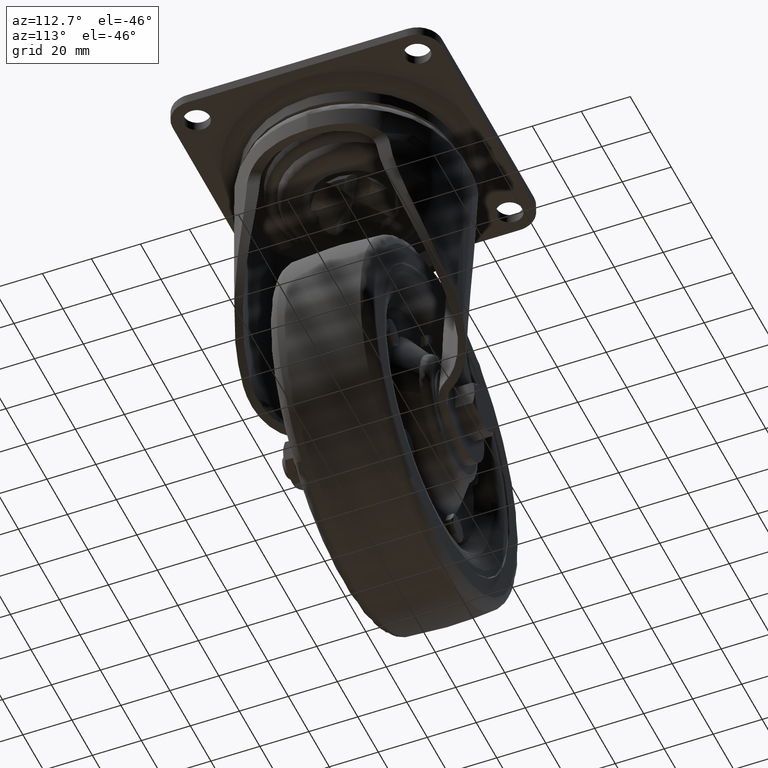
[diagram: clean part render]
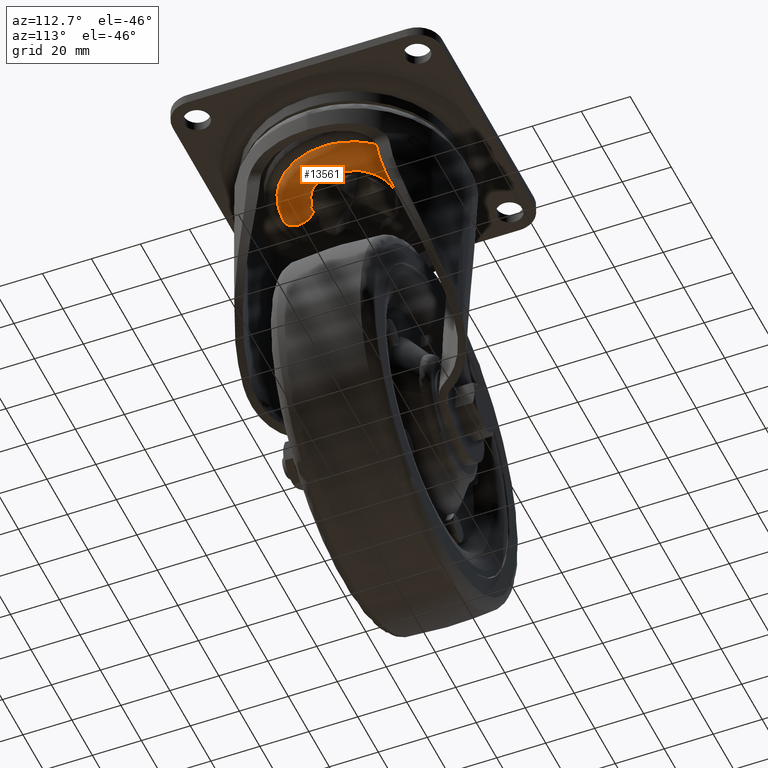
[diagram: same view with one face highlighted and labeled with its STEP entity id]
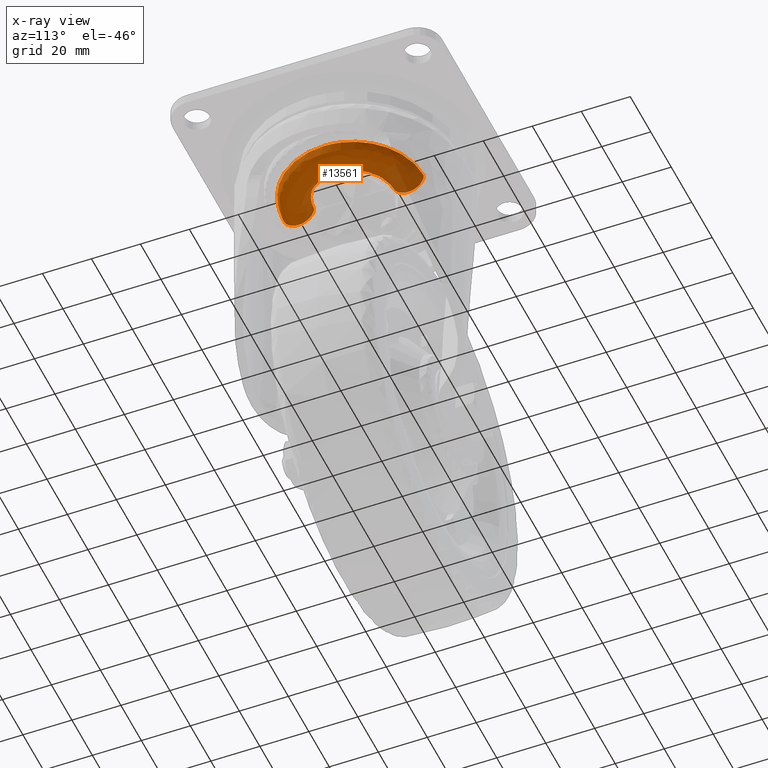
[diagram: x-ray of the same camera — body ghosted, the highlighted face saturated]
A machine part, auxiliary view. The second image highlights one B-rep face of the part: STEP entity #13561.
The next image is the same camera in x-ray: the body ghosted, the highlighted face saturated — about 16% of this face is hidden behind the body in this view.
In plain terms, the highlighted face is a freeform B-spline surface patch.
Its self-contained STEP definition (entity closure, byte-faithful):
#13110=CARTESIAN_POINT('',(0.0,16.0,-20.525000000543741));
#13111=VERTEX_POINT('',#13110);
#13125=CARTESIAN_POINT('',(16.0,0.0,-20.524999999999999));
#13126=VERTEX_POINT('',#13125);
#13127=CARTESIAN_POINT('',(0.0,16.0,-20.525000000543741));
#13128=CARTESIAN_POINT('',(15.999999999999998,15.999999999999998,-20.525000000271870));
#13129=CARTESIAN_POINT('',(16.0,0.0,-20.524999999999999));
#13137=(BOUNDED_CURVE()B_SPLINE_CURVE(2,(#13127,#13128,#13129),.UNSPECIFIED.,.F.,.U.)B_SPLINE_CURVE_WITH_KNOTS((3,3),(0.250000000000000,0.500000000000000),.UNSPECIFIED.)CURVE()GEOMETRIC_REPRESENTATION_ITEM()RATIONAL_B_SPLINE_CURVE((1.0,0.707106781186548,1.0))REPRESENTATION_ITEM(''));
#13138=EDGE_CURVE('',#13111,#13126,#13137,.T.);
#13140=CARTESIAN_POINT('',(11.605990840912520,-11.013672257728251,-20.525000000261858));
#13141=VERTEX_POINT('',#13140);
#13142=CARTESIAN_POINT('',(16.0,0.0,-20.524999999999999));
#13143=CARTESIAN_POINT('',(16.0,-6.383351973822055,-20.525000000108470));
#13144=CARTESIAN_POINT('',(11.605990840912554,-11.013672257728295,-20.525000000261809));
#13152=(BOUNDED_CURVE()B_SPLINE_CURVE(2,(#13142,#13143,#13144),.UNSPECIFIED.,.F.,.U.)B_SPLINE_CURVE_WITH_KNOTS((3,3),(0.500000000000000,0.621049514262258),.UNSPECIFIED.)CURVE()GEOMETRIC_REPRESENTATION_ITEM()RATIONAL_B_SPLINE_CURVE((1.0,0.858181672527689,0.853699662287451))REPRESENTATION_ITEM(''));
#13153=EDGE_CURVE('',#13126,#13141,#13152,.T.);
#13207=CARTESIAN_POINT('',(8.733946E-016,-16.0,-20.525000000543741));
#13208=VERTEX_POINT('',#13207);
#13209=CARTESIAN_POINT('',(11.605990840912554,-11.013672257728295,-20.525000000261809));
#13210=CARTESIAN_POINT('',(6.874143273929573,-16.0,-20.525000000426935));
#13211=CARTESIAN_POINT('',(8.733946E-016,-16.0,-20.525000000543741));
#13219=(BOUNDED_CURVE()B_SPLINE_CURVE(2,(#13209,#13210,#13211),.UNSPECIFIED.,.F.,.U.)B_SPLINE_CURVE_WITH_KNOTS((3,3),(0.621049514262258,0.750000000000000),.UNSPECIFIED.)CURVE()GEOMETRIC_REPRESENTATION_ITEM()RATIONAL_B_SPLINE_CURVE((0.853699662287451,0.848925108658858,1.0))REPRESENTATION_ITEM(''));
#13220=EDGE_CURVE('',#13141,#13208,#13219,.T.);
#13404=CARTESIAN_POINT('',(3.014593E-014,-28.749999999999989,-20.525000000479810));
#13405=VERTEX_POINT('',#13404);
#13406=CARTESIAN_POINT('',(3.014593E-014,-28.749999999999989,-20.525000000479810));
#13407=CARTESIAN_POINT('',(-1.344581E-014,-28.750082172684710,-20.994402385624291));
#13408=CARTESIAN_POINT('',(1.072928E-014,-28.660295752064780,-21.802763336197501));
#13409=CARTESIAN_POINT('',(8.799959E-016,-28.303890941417610,-22.952157454257211));
#13410=CARTESIAN_POINT('',(4.344726E-015,-27.696254768093990,-24.141586302158871));
#13411=CARTESIAN_POINT('',(2.861740E-015,-26.739754506233719,-25.264334613196301));
#13412=CARTESIAN_POINT('',(3.355357E-015,-25.602663723854821,-26.064882447649008));
#13413=CARTESIAN_POINT('',(3.361670E-015,-24.413976986034061,-26.609383296407081));
#13414=CARTESIAN_POINT('',(3.477330E-015,-23.263707121248601,-26.882590893327642));
#13415=CARTESIAN_POINT('',(3.560036E-015,-22.034741792682169,-26.920134347665240));
#13416=CARTESIAN_POINT('',(3.048243E-015,-20.737907879838410,-26.744318505072009));
#13417=CARTESIAN_POINT('',(2.733621E-015,-19.383221705815512,-26.231222191312209));
#13418=CARTESIAN_POINT('',(2.370129E-015,-18.203471694870451,-25.400171501827121));
#13419=CARTESIAN_POINT('',(2.088737E-015,-17.337174656169228,-24.490210478616401));
#13420=CARTESIAN_POINT('',(2.159818E-015,-16.579560917845779,-23.326144486754309));
#13421=CARTESIAN_POINT('',(1.182241E-015,-16.100037796188079,-21.959263100965028));
#13422=CARTESIAN_POINT('',(2.332893E-015,-15.999978259980280,-20.942206380705919));
#13423=CARTESIAN_POINT('',(8.733946E-016,-16.0,-20.525000000543741));
#13424=B_SPLINE_CURVE_WITH_KNOTS('',3,(#13406,#13407,#13408,#13409,#13410,#13411,#13412,#13413,#13414,#13415,#13416,#13417,#13418,#13419,#13420,#13421,#13422,#13423),.UNSPECIFIED.,.F.,.U.,(4,1,1,1,1,1,1,1,1,1,1,1,1,1,1,4),(0.000000708556030,1.408197387669055,2.425213565202306,3.598723030366802,5.398131815701264,6.806356541387057,7.745197802343483,9.309856874538921,10.326722238627459,11.422074060575600,13.221388828936670,14.629635181378340,15.724934916081629,16.976711367033321,18.776135455021009,20.027778830854881),.UNSPECIFIED.);
#13425=EDGE_CURVE('',#13405,#13208,#13424,.T.);
#13442=CARTESIAN_POINT('',(-2.486900E-014,28.749999999999989,-20.525000000479810));
#13443=VERTEX_POINT('',#13442);
#13457=CARTESIAN_POINT('',(-2.486900E-014,28.749999999999989,-20.525000000479810));
#13458=CARTESIAN_POINT('',(1.324521E-014,28.750035307598850,-20.916136535703760));
#13459=CARTESIAN_POINT('',(-1.058403E-014,28.675387412468680,-21.724525602919719));
#13460=CARTESIAN_POINT('',(3.530806E-015,28.339703680665838,-22.882196186751511));
#13461=CARTESIAN_POINT('',(-1.206335E-015,27.743819935753770,-24.048227601694290));
#13462=CARTESIAN_POINT('',(5.609523E-016,26.818130378365140,-25.190590057895470));
#13463=CARTESIAN_POINT('',(-2.030828E-016,25.655576336751409,-26.052801748812470));
#13464=CARTESIAN_POINT('',(3.698121E-017,24.482935632956298,-26.572361103137940));
#13465=CARTESIAN_POINT('',(8.920217E-022,23.342821076821590,-26.865449787961381));
#13466=CARTESIAN_POINT('',(-2.690851E-022,22.112061911730532,-26.941071510449390));
#13467=CARTESIAN_POINT('',(1.080107E-022,20.608635477578400,-26.718270515944621));
#13468=CARTESIAN_POINT('',(-3.182957E-023,19.269155500978140,-26.163459631093069));
#13469=CARTESIAN_POINT('',(4.831673E-024,18.191614064229348,-25.374176606646952));
#13470=CARTESIAN_POINT('',(0.0,17.369781829353201,-24.532028200028780));
#13471=CARTESIAN_POINT('',(0.0,16.640851853686829,-23.441285143666342));
#13472=CARTESIAN_POINT('',(0.0,16.119112720019292,-22.037446388688849));
#13473=CARTESIAN_POINT('',(0.0,15.999907703511640,-21.020463020449871));
#13474=CARTESIAN_POINT('',(0.0,16.0,-20.525000000543741));
#13475=B_SPLINE_CURVE_WITH_KNOTS('',3,(#13457,#13458,#13459,#13460,#13461,#13462,#13463,#13464,#13465,#13466,#13467,#13468,#13469,#13470,#13471,#13472,#13473,#13474),.UNSPECIFIED.,.F.,.U.,(4,1,1,1,1,1,1,1,1,1,1,1,1,1,1,4),(0.000000708562027,1.173412848648077,2.425213565207741,3.598723030371840,5.085201597240008,6.806356541391573,7.901625474266631,8.918718929449813,10.326722238629120,11.578476237009131,13.456139726608480,14.629635181377459,15.568465676495951,16.976711367033069,18.541398619356720,20.027778830854881),.UNSPECIFIED.);
#13476=EDGE_CURVE('',#13443,#13111,#13475,.T.);
#13483=CARTESIAN_POINT('',(-0.801956041474541,28.685608825813549,-19.621207298345453));
#13484=CARTESIAN_POINT('',(-0.403313216341473,28.685608825813546,-19.621207298345460));
#13485=CARTESIAN_POINT('',(28.685608825813542,28.685608825813542,-19.621207298345453));
#13486=CARTESIAN_POINT('',(28.685608825813549,1.756429E-015,-19.621207298345457));
#13487=CARTESIAN_POINT('',(28.685608825813556,-28.685608825813542,-19.621207298345453));
#13488=CARTESIAN_POINT('',(-0.403313216341460,-28.685608825813549,-19.621207298345464));
#13489=CARTESIAN_POINT('',(-0.801956041474520,-28.685608825813546,-19.621207298345457));
#13490=CARTESIAN_POINT('',(-0.831285312390123,29.734703725184531,-26.946368830372325));
#13491=CARTESIAN_POINT('',(-0.418063254964742,29.734703725184534,-26.946368830372339));
#13492=CARTESIAN_POINT('',(29.734703725184524,29.734703725184524,-26.946368830372336));
#13493=CARTESIAN_POINT('',(29.734703725184531,1.820665E-015,-26.946368830372332));
#13494=CARTESIAN_POINT('',(29.734703725184524,-29.734703725184524,-26.946368830372336));
#13495=CARTESIAN_POINT('',(-0.418063254964729,-29.734703725184534,-26.946368830372322));
#13496=CARTESIAN_POINT('',(-0.831285312390101,-29.734703725184524,-26.946368830372336));
#13497=CARTESIAN_POINT('',(-0.624412197531093,22.334944957219541,-26.899874162957857));
#13498=CARTESIAN_POINT('',(-0.314024308921061,22.334944957219566,-26.899874162957879));
#13499=CARTESIAN_POINT('',(22.334944957219552,22.334944957219552,-26.899874162957875));
#13500=CARTESIAN_POINT('',(22.334944957219559,1.367576E-015,-26.899874162957872));
#13501=CARTESIAN_POINT('',(22.334944957219552,-22.334944957219552,-26.899874162957875));
#13502=CARTESIAN_POINT('',(-0.314024308921051,-22.334944957219555,-26.899874162957868));
#13503=CARTESIAN_POINT('',(-0.624412197531077,-22.334944957219559,-26.899874162957868));
#13504=CARTESIAN_POINT('',(-0.420003722948155,15.023345269303801,-26.853933422669275));
#13505=CARTESIAN_POINT('',(-0.211224859739386,15.023345269303801,-26.853933422669272));
#13506=CARTESIAN_POINT('',(15.023345269303800,15.023345269303801,-26.853933422669272));
#13507=CARTESIAN_POINT('',(15.023345269303801,9.198842E-016,-26.853933422669279));
#13508=CARTESIAN_POINT('',(15.023345269303801,-15.023345269303800,-26.853933422669272));
#13509=CARTESIAN_POINT('',(-0.211224859739380,-15.023345269303801,-26.853933422669275));
#13510=CARTESIAN_POINT('',(-0.420003722948144,-15.023345269303801,-26.853933422669282));
#13511=CARTESIAN_POINT('',(-0.449125771115522,16.065027903678086,-19.616772526489687));
#13512=CARTESIAN_POINT('',(-0.225870683581845,16.065027903678093,-19.616772526489683));
#13513=CARTESIAN_POINT('',(16.065027903678086,16.065027903678086,-19.616772526489680));
#13514=CARTESIAN_POINT('',(16.065027903678089,9.836668E-016,-19.616772526489676));
#13515=CARTESIAN_POINT('',(16.065027903678086,-16.065027903678086,-19.616772526489680));
#13516=CARTESIAN_POINT('',(-0.225870683581838,-16.065027903678086,-19.616772526489683));
#13517=CARTESIAN_POINT('',(-0.449125771115510,-16.065027903678089,-19.616772526489683));
#13525=(BOUNDED_SURFACE()B_SPLINE_SURFACE(2,2,((#13483,#13490,#13497,#13504,#13511),(#13484,#13491,#13498,#13505,#13512),(#13485,#13492,#13499,#13506,#13513),(#13486,#13493,#13500,#13507,#13514),(#13487,#13494,#13501,#13508,#13515),(#13488,#13495,#13502,#13509,#13516),(#13489,#13496,#13503,#13510,#13517)),.UNSPECIFIED.,.F.,.F.,.U.)B_SPLINE_SURFACE_WITH_KNOTS((3,1,2,1,3),(3,2,3),(0.0,0.950557457646528,48.478430339971823,96.006303222297120,96.956860679943631),(0.0,11.691476881419190,23.292307663053951),.UNSPECIFIED.)GEOMETRIC_REPRESENTATION_ITEM()RATIONAL_B_SPLINE_SURFACE(((0.997364038925622,0.655637655299653,1.011715728752539,0.658398391937516,0.992107054316682),(0.991589271263368,0.651841493635293,1.005857864376269,0.654586245525322,0.986362724752790),(0.697076120488398,0.458237248752934,0.707106781186548,0.460166778503460,0.693401916994340),(0.985814503601113,0.648045331970933,1.0,0.650774099113129,0.980618395188899),(0.697076120488398,0.458237248752934,0.707106781186548,0.460166778503460,0.693401916994340),(0.991589271263368,0.651841493635293,1.005857864376269,0.654586245525322,0.986362724752790),(0.997364038925622,0.655637655299653,1.011715728752538,0.658398391937516,0.992107054316681)))REPRESENTATION_ITEM('')SURFACE());
#13526=ORIENTED_EDGE('',*,*,#13220,.F.);
#13527=ORIENTED_EDGE('',*,*,#13153,.F.);
#13528=ORIENTED_EDGE('',*,*,#13138,.F.);
#13529=ORIENTED_EDGE('',*,*,#13476,.F.);
#13530=CARTESIAN_POINT('',(28.750000000000000,0.0,-20.524999999999999));
#13531=VERTEX_POINT('',#13530);
#13532=CARTESIAN_POINT('',(-2.486900E-014,28.749999999999989,-20.525000000479810));
#13533=CARTESIAN_POINT('',(28.750000000000004,28.750000000000018,-20.525000000239903));
#13534=CARTESIAN_POINT('',(28.750000000000000,0.0,-20.524999999999999));
#13542=(BOUNDED_CURVE()B_SPLINE_CURVE(2,(#13532,#13533,#13534),.UNSPECIFIED.,.F.,.U.)B_SPLINE_CURVE_WITH_KNOTS((3,3),(0.250000000000000,0.500000000000000),.UNSPECIFIED.)CURVE()GEOMETRIC_REPRESENTATION_ITEM()RATIONAL_B_SPLINE_CURVE((1.0,0.707106781186547,1.0))REPRESENTATION_ITEM(''));
#13543=EDGE_CURVE('',#13443,#13531,#13542,.T.);
#13544=ORIENTED_EDGE('',*,*,#13543,.T.);
#13545=CARTESIAN_POINT('',(28.750000000000000,0.0,-20.524999999999999));
#13546=CARTESIAN_POINT('',(28.749999999999986,-28.749999999999961,-20.525000000239903));
#13547=CARTESIAN_POINT('',(3.014593E-014,-28.749999999999993,-20.525000000479810));
#13555=(BOUNDED_CURVE()B_SPLINE_CURVE(2,(#13545,#13546,#13547),.UNSPECIFIED.,.F.,.U.)B_SPLINE_CURVE_WITH_KNOTS((3,3),(0.500000000000000,0.750000000000000),.UNSPECIFIED.)CURVE()GEOMETRIC_REPRESENTATION_ITEM()RATIONAL_B_SPLINE_CURVE((1.0,0.707106781186548,1.000000000000000))REPRESENTATION_ITEM(''));
#13556=EDGE_CURVE('',#13531,#13405,#13555,.T.);
#13557=ORIENTED_EDGE('',*,*,#13556,.T.);
#13558=ORIENTED_EDGE('',*,*,#13425,.T.);
#13559=EDGE_LOOP('',(#13526,#13527,#13528,#13529,#13544,#13557,#13558));
#13560=FACE_OUTER_BOUND('',#13559,.T.);
#13561=ADVANCED_FACE('',(#13560),#13525,.T.);